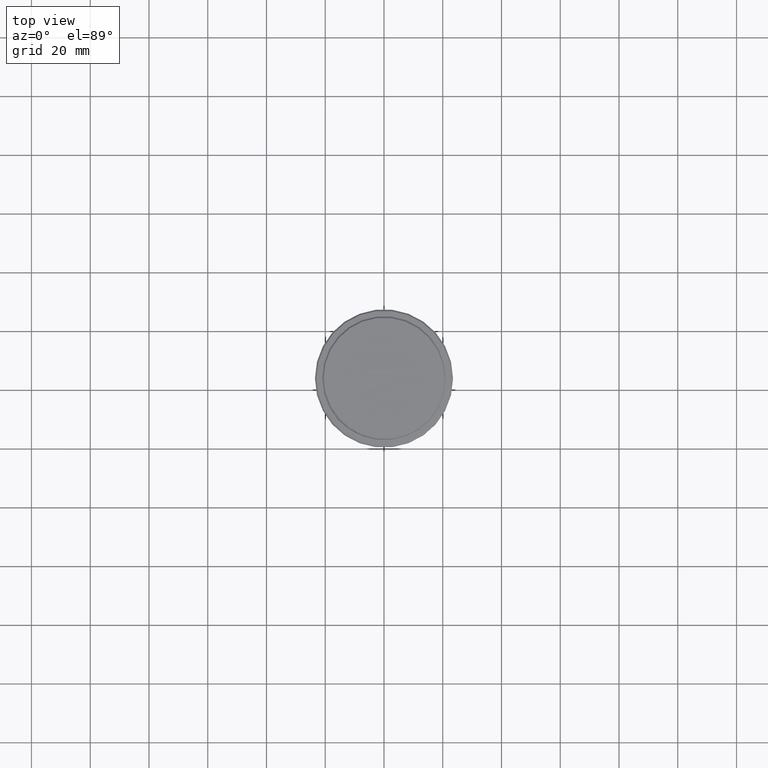
[diagram: clean part render]
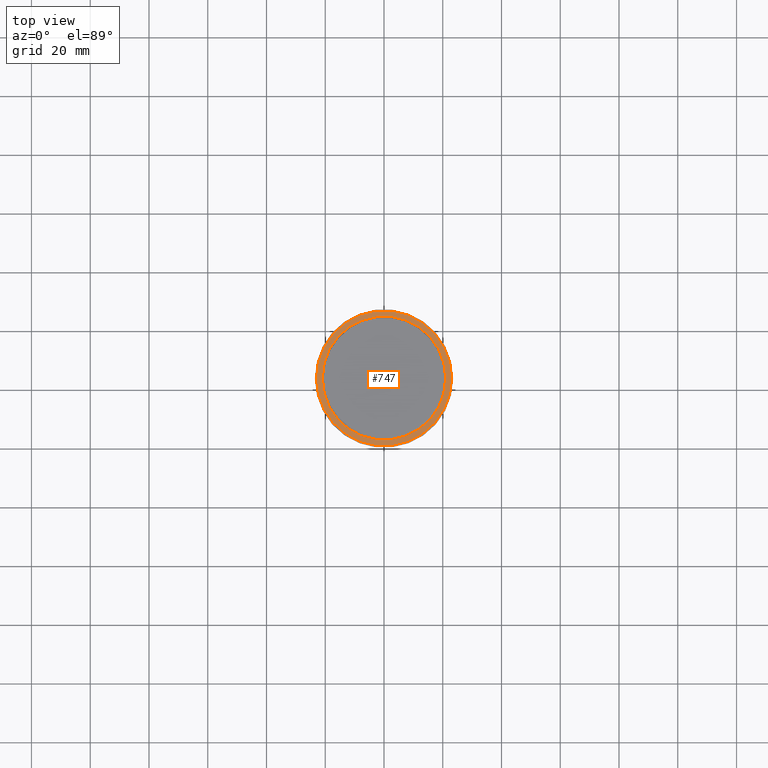
[diagram: same view with one face highlighted and labeled with its STEP entity id]
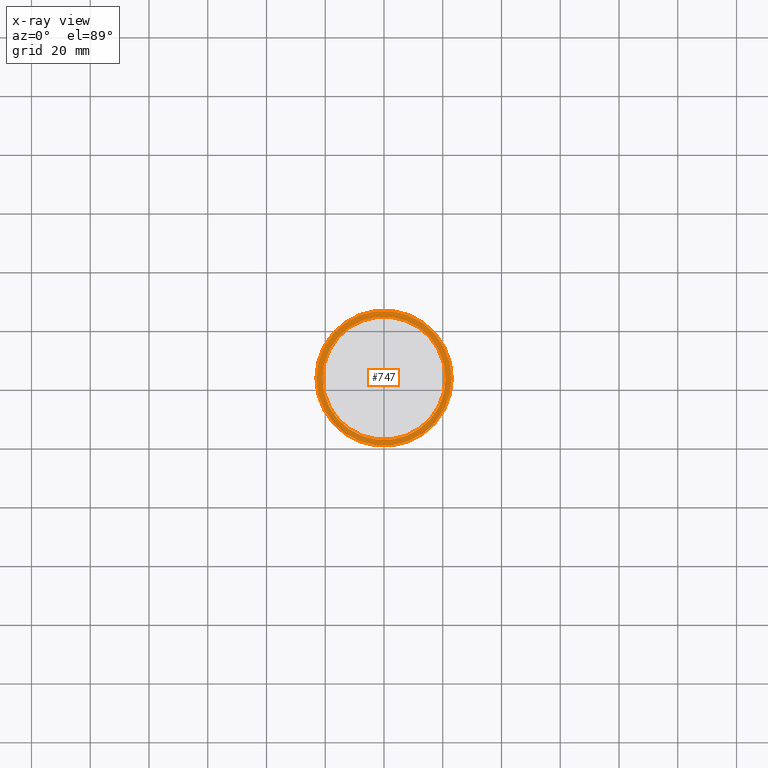
[diagram: x-ray of the same camera — body ghosted, the highlighted face saturated]
A machine part, top view. The second image highlights one B-rep face of the part: STEP entity #747.
The next image is the same camera in x-ray: the body ghosted, the highlighted face saturated — about 0% of this face is hidden behind the body in this view.
In plain terms, the highlighted planar face has unit normal (0, -0, 1).
Its self-contained STEP definition (entity closure, byte-faithful):
#29 = EDGE_CURVE ( 'NONE', #139, #40, #215, .T. ) ;
#40 = VERTEX_POINT ( 'NONE', #962 ) ;
#62 = CARTESIAN_POINT ( 'NONE',  ( 0.000000000000000000, 0.000000000000000000, -9.000000000000000000 ) ) ;
#139 = VERTEX_POINT ( 'NONE', #639 ) ;
#215 = CIRCLE ( 'NONE', #553, 20.99999999999999289 ) ;
#221 = ORIENTED_EDGE ( 'NONE', *, *, #987, .T. ) ;
#246 = EDGE_LOOP ( 'NONE', ( #567, #525 ) ) ;
#281 = CARTESIAN_POINT ( 'NONE',  ( 0.000000000000000000, 0.000000000000000000, -9.000000000000000000 ) ) ;
#283 = CIRCLE ( 'NONE', #1353, 22.99999999999999645 ) ;
#288 = EDGE_CURVE ( 'NONE', #40, #139, #419, .T. ) ;
#289 = DIRECTION ( 'NONE',  ( 0.000000000000000000, 0.000000000000000000, -1.000000000000000000 ) ) ;
#294 = VERTEX_POINT ( 'NONE', #1039 ) ;
#352 = AXIS2_PLACEMENT_3D ( 'NONE', #578, #699, #1362 ) ;
#359 = FACE_BOUND ( 'NONE', #246, .T. ) ;
#410 = DIRECTION ( 'NONE',  ( 1.000000000000000000, 0.000000000000000000, 0.000000000000000000 ) ) ;
#414 = ORIENTED_EDGE ( 'NONE', *, *, #1157, .T. ) ;
#419 = CIRCLE ( 'NONE', #442, 20.99999999999999289 ) ;
#442 = AXIS2_PLACEMENT_3D ( 'NONE', #851, #634, #942 ) ;
#485 = PLANE ( 'NONE',  #352 ) ;
#525 = ORIENTED_EDGE ( 'NONE', *, *, #29, .T. ) ;
#553 = AXIS2_PLACEMENT_3D ( 'NONE', #62, #289, #944 ) ;
#567 = ORIENTED_EDGE ( 'NONE', *, *, #288, .T. ) ;
#578 = CARTESIAN_POINT ( 'NONE',  ( 0.000000000000000000, 20.49999999999999645, -9.000000000000000000 ) ) ;
#634 = DIRECTION ( 'NONE',  ( 0.000000000000000000, 0.000000000000000000, -1.000000000000000000 ) ) ;
#639 = CARTESIAN_POINT ( 'NONE',  ( -20.99999999999999289, 2.571758278209440872E-15, -9.000000000000000000 ) ) ;
#643 = DIRECTION ( 'NONE',  ( 1.000000000000000000, 0.000000000000000000, 0.000000000000000000 ) ) ;
#684 = EDGE_LOOP ( 'NONE', ( #414, #221 ) ) ;
#699 = DIRECTION ( 'NONE',  ( 0.000000000000000000, -0.000000000000000000, 1.000000000000000000 ) ) ;
#719 = DIRECTION ( 'NONE',  ( -0.000000000000000000, -0.000000000000000000, 1.000000000000000000 ) ) ;
#747 = ADVANCED_FACE ( 'NONE', ( #936, #359 ), #485, .T. ) ;
#851 = CARTESIAN_POINT ( 'NONE',  ( 0.000000000000000000, 0.000000000000000000, -9.000000000000000000 ) ) ;
#871 = DIRECTION ( 'NONE',  ( -0.000000000000000000, -0.000000000000000000, 1.000000000000000000 ) ) ;
#936 = FACE_OUTER_BOUND ( 'NONE', #684, .T. ) ;
#942 = DIRECTION ( 'NONE',  ( 1.000000000000000000, 0.000000000000000000, 0.000000000000000000 ) ) ;
#944 = DIRECTION ( 'NONE',  ( 1.000000000000000000, 0.000000000000000000, 0.000000000000000000 ) ) ;
#947 = CARTESIAN_POINT ( 'NONE',  ( 22.99999999999999645, 2.847303808017596139E-15, -9.000000000000000000 ) ) ;
#952 = AXIS2_PLACEMENT_3D ( 'NONE', #281, #719, #410 ) ;
#962 = CARTESIAN_POINT ( 'NONE',  ( 20.99999999999999289, 0.000000000000000000, -9.000000000000000000 ) ) ;
#987 = EDGE_CURVE ( 'NONE', #997, #294, #1019, .T. ) ;
#997 = VERTEX_POINT ( 'NONE', #947 ) ;
#1019 = CIRCLE ( 'NONE', #952, 22.99999999999999645 ) ;
#1039 = CARTESIAN_POINT ( 'NONE',  ( -22.99999999999999645, 0.000000000000000000, -9.000000000000000000 ) ) ;
#1157 = EDGE_CURVE ( 'NONE', #294, #997, #283, .T. ) ;
#1294 = CARTESIAN_POINT ( 'NONE',  ( 0.000000000000000000, 0.000000000000000000, -9.000000000000000000 ) ) ;
#1353 = AXIS2_PLACEMENT_3D ( 'NONE', #1294, #871, #643 ) ;
#1362 = DIRECTION ( 'NONE',  ( 1.000000000000000000, 0.000000000000000000, 0.000000000000000000 ) ) ;